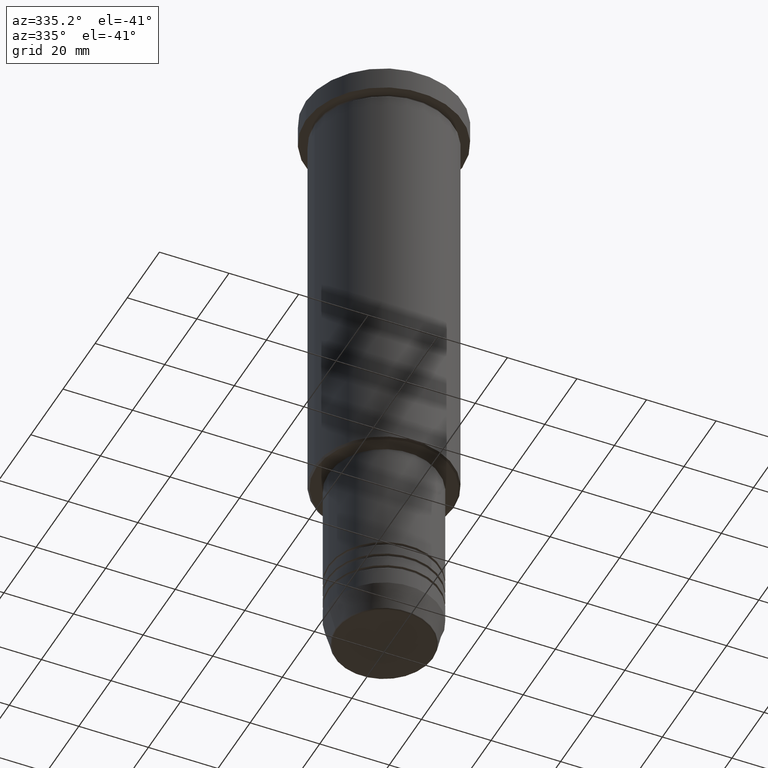
[diagram: clean part render]
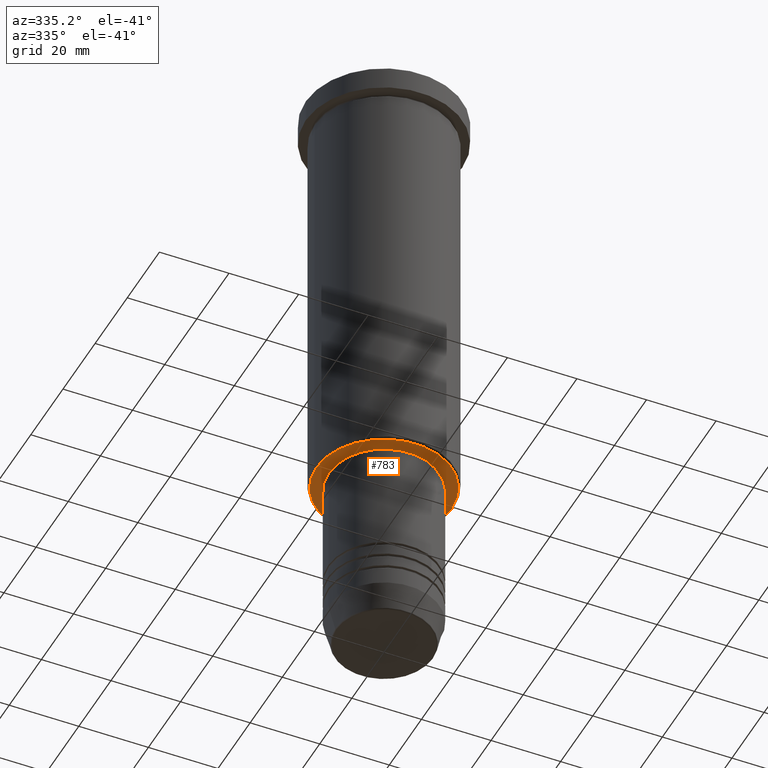
[diagram: same view with one face highlighted and labeled with its STEP entity id]
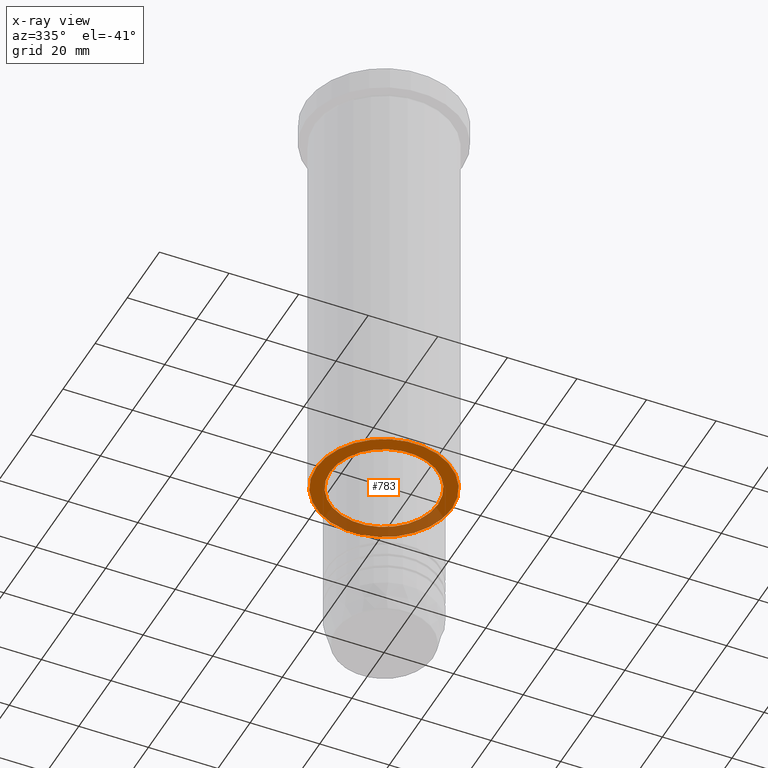
[diagram: x-ray of the same camera — body ghosted, the highlighted face saturated]
A machine part, auxiliary view. The second image highlights one B-rep face of the part: STEP entity #783.
The next image is the same camera in x-ray: the body ghosted, the highlighted face saturated — about 31% of this face is hidden behind the body in this view.
In plain terms, the highlighted planar face has unit normal (0, 0, -1).
Its self-contained STEP definition (entity closure, byte-faithful):
#35 = VERTEX_POINT ( 'NONE', #530 ) ;
#51 = DIRECTION ( 'NONE',  ( 0.000000000000000000, 0.000000000000000000, -1.000000000000000000 ) ) ;
#88 = CIRCLE ( 'NONE', #868, 19.49999999999998934 ) ;
#97 = VERTEX_POINT ( 'NONE', #1015 ) ;
#141 = CARTESIAN_POINT ( 'NONE',  ( 0.000000000000000000, 20.00000000000000355, -126.0000000000000000 ) ) ;
#160 = DIRECTION ( 'NONE',  ( 1.000000000000000000, 0.000000000000000000, 0.000000000000000000 ) ) ;
#234 = DIRECTION ( 'NONE',  ( -1.000000000000000000, 0.000000000000000000, -0.000000000000000000 ) ) ;
#237 = CIRCLE ( 'NONE', #402, 15.50000000000000000 ) ;
#252 = DIRECTION ( 'NONE',  ( -0.000000000000000000, -0.000000000000000000, 1.000000000000000000 ) ) ;
#282 = AXIS2_PLACEMENT_3D ( 'NONE', #141, #618, #234 ) ;
#301 = CIRCLE ( 'NONE', #512, 15.50000000000000000 ) ;
#308 = VERTEX_POINT ( 'NONE', #975 ) ;
#327 = CARTESIAN_POINT ( 'NONE',  ( 19.49999999999998934, 0.000000000000000000, -126.0000000000000000 ) ) ;
#351 = EDGE_LOOP ( 'NONE', ( #850, #819 ) ) ;
#402 = AXIS2_PLACEMENT_3D ( 'NONE', #637, #252, #160 ) ;
#405 = DIRECTION ( 'NONE',  ( 1.000000000000000000, 0.000000000000000000, 0.000000000000000000 ) ) ;
#430 = FACE_BOUND ( 'NONE', #351, .T. ) ;
#505 = CARTESIAN_POINT ( 'NONE',  ( 0.000000000000000000, 0.000000000000000000, -126.0000000000000000 ) ) ;
#512 = AXIS2_PLACEMENT_3D ( 'NONE', #601, #513, #405 ) ;
#513 = DIRECTION ( 'NONE',  ( -0.000000000000000000, -0.000000000000000000, 1.000000000000000000 ) ) ;
#530 = CARTESIAN_POINT ( 'NONE',  ( -15.50000000000000000, 1.898202538678397557E-15, -126.0000000000000000 ) ) ;
#542 = EDGE_CURVE ( 'NONE', #35, #308, #237, .T. ) ;
#601 = CARTESIAN_POINT ( 'NONE',  ( 0.000000000000000000, 0.000000000000000000, -126.0000000000000000 ) ) ;
#618 = DIRECTION ( 'NONE',  ( 0.000000000000000000, 0.000000000000000000, -1.000000000000000000 ) ) ;
#627 = VERTEX_POINT ( 'NONE', #327 ) ;
#637 = CARTESIAN_POINT ( 'NONE',  ( 0.000000000000000000, 0.000000000000000000, -126.0000000000000000 ) ) ;
#659 = ORIENTED_EDGE ( 'NONE', *, *, #799, .T. ) ;
#670 = EDGE_CURVE ( 'NONE', #308, #35, #301, .T. ) ;
#672 = EDGE_LOOP ( 'NONE', ( #659, #888 ) ) ;
#691 = DIRECTION ( 'NONE',  ( 0.000000000000000000, 0.000000000000000000, -1.000000000000000000 ) ) ;
#776 = DIRECTION ( 'NONE',  ( -1.000000000000000000, 0.000000000000000000, 0.000000000000000000 ) ) ;
#783 = ADVANCED_FACE ( 'NONE', ( #957, #430 ), #1157, .T. ) ;
#788 = DIRECTION ( 'NONE',  ( -1.000000000000000000, 0.000000000000000000, 0.000000000000000000 ) ) ;
#799 = EDGE_CURVE ( 'NONE', #627, #97, #1179, .T. ) ;
#819 = ORIENTED_EDGE ( 'NONE', *, *, #542, .T. ) ;
#850 = ORIENTED_EDGE ( 'NONE', *, *, #670, .T. ) ;
#868 = AXIS2_PLACEMENT_3D ( 'NONE', #505, #691, #776 ) ;
#875 = CARTESIAN_POINT ( 'NONE',  ( 0.000000000000000000, 0.000000000000000000, -126.0000000000000000 ) ) ;
#888 = ORIENTED_EDGE ( 'NONE', *, *, #990, .T. ) ;
#957 = FACE_OUTER_BOUND ( 'NONE', #672, .T. ) ;
#975 = CARTESIAN_POINT ( 'NONE',  ( 15.50000000000000000, 0.000000000000000000, -126.0000000000000000 ) ) ;
#990 = EDGE_CURVE ( 'NONE', #97, #627, #88, .T. ) ;
#1015 = CARTESIAN_POINT ( 'NONE',  ( -19.49999999999998934, 2.418677428316021937E-15, -126.0000000000000000 ) ) ;
#1024 = AXIS2_PLACEMENT_3D ( 'NONE', #875, #51, #788 ) ;
#1157 = PLANE ( 'NONE',  #282 ) ;
#1179 = CIRCLE ( 'NONE', #1024, 19.49999999999998934 ) ;